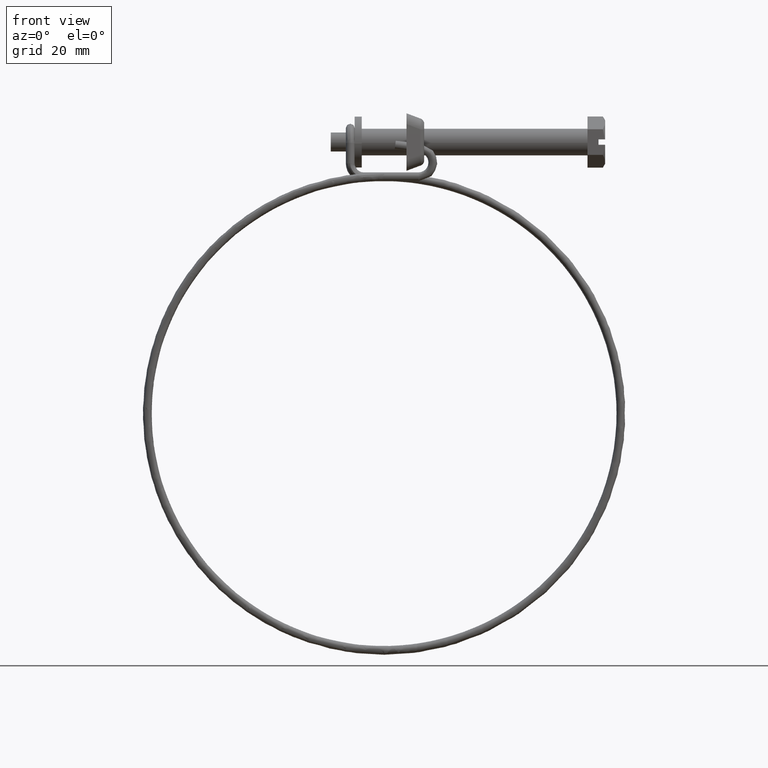
[diagram: clean part render]
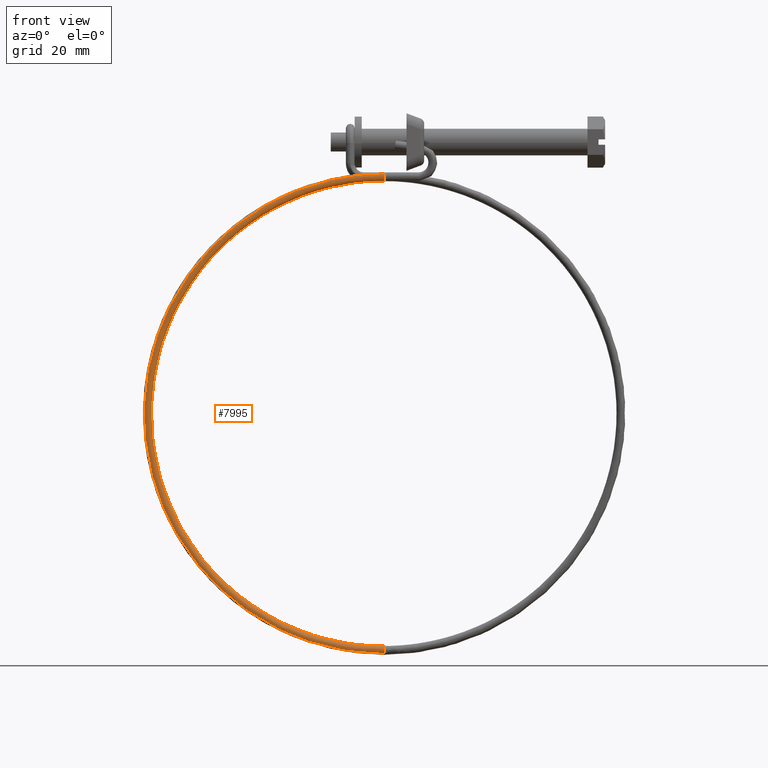
[diagram: same view with one face highlighted and labeled with its STEP entity id]
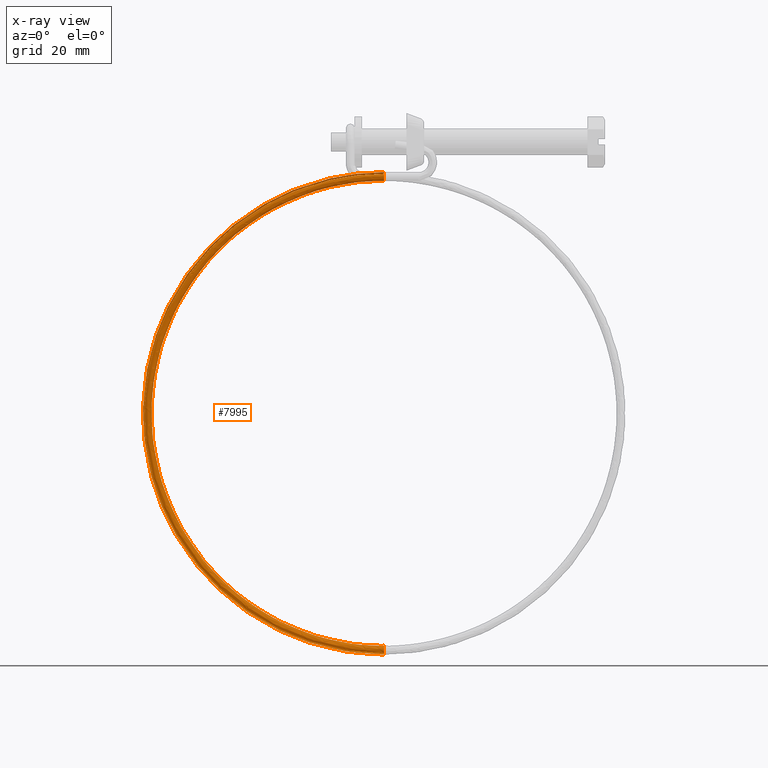
[diagram: x-ray of the same camera — body ghosted, the highlighted face saturated]
A machine part, front view. The second image highlights one B-rep face of the part: STEP entity #7995.
The next image is the same camera in x-ray: the body ghosted, the highlighted face saturated — about 0% of this face is hidden behind the body in this view.
In plain terms, the highlighted face is a freeform B-spline surface patch.
Its self-contained STEP definition (entity closure, byte-faithful):
#5912=CARTESIAN_POINT('',(-45.949999999998703,-5.993943839840402,-6.901770432408448));
#5913=VERTEX_POINT('',#5912);
#5919=CARTESIAN_POINT('',(-45.949999999998703,-6.347558821342070,-6.850706506990100));
#5920=VERTEX_POINT('',#5919);
#5921=CARTESIAN_POINT('',(-45.949999999998703,-5.993943839840402,-6.901770432408448));
#5922=CARTESIAN_POINT('',(-45.949999999998703,-6.107565939268501,-6.863957638790427));
#5923=CARTESIAN_POINT('',(-45.949999999998703,-6.227818193725820,-6.846057049209963));
#5924=CARTESIAN_POINT('',(-45.949999999998703,-6.347558821342070,-6.850706506990100));
#5925=B_SPLINE_CURVE_WITH_KNOTS('',3,(#5921,#5922,#5923,#5924),.UNSPECIFIED.,.F.,.U.,(4,4),(0.942811831421897,1.0),.UNSPECIFIED.);
#5926=EDGE_CURVE('',#5913,#5920,#5925,.T.);
#5928=CARTESIAN_POINT('',(-45.949999999998703,-7.064145653781002,-7.193325254520285));
#5929=VERTEX_POINT('',#5928);
#5939=CARTESIAN_POINT('',(-45.949999999998703,-6.272445141091740,-8.849295493009789));
#5940=VERTEX_POINT('',#5939);
#5941=CARTESIAN_POINT('',(-45.949999999998703,-7.064145653781002,-7.193325254520285));
#5942=CARTESIAN_POINT('',(-45.949999999998703,-7.228865528266508,-7.383012991203107));
#5943=CARTESIAN_POINT('',(-45.949999999998703,-7.318735519895909,-7.636408213984530));
#5944=CARTESIAN_POINT('',(-45.949999999998703,-7.299464116474320,-8.149172526626140));
#5945=CARTESIAN_POINT('',(-45.949999999998703,-7.181995243018780,-8.405128616700951));
#5946=CARTESIAN_POINT('',(-45.949999999998703,-6.798111151569420,-8.761202600783092));
#5947=CARTESIAN_POINT('',(-45.949999999998703,-6.534059827592780,-8.859127850762231));
#5948=CARTESIAN_POINT('',(-45.949999999998703,-6.272445141091740,-8.849295493009789));
#5949=B_SPLINE_CURVE_WITH_KNOTS('',3,(#5941,#5942,#5943,#5944,#5945,#5946,#5947,#5948),.UNSPECIFIED.,.F.,.U.,(4,2,2,4),(0.130000225952729,0.250000000000000,0.375000000000000,0.500000000000000),.UNSPECIFIED.);
#5950=EDGE_CURVE('',#5929,#5940,#5949,.T.);
#5952=CARTESIAN_POINT('',(-45.949999999998703,-5.310317494428539,-7.873518651706552));
#5953=VERTEX_POINT('',#5952);
#5954=CARTESIAN_POINT('',(-45.949999999998703,-6.272445141091740,-8.849295493009789));
#5955=CARTESIAN_POINT('',(-45.949999999998703,-6.010825040058333,-8.839463275377119));
#5956=CARTESIAN_POINT('',(-45.949999999998703,-5.754861471820470,-8.721994595444929));
#5957=CARTESIAN_POINT('',(-45.949999999998703,-5.412625271354212,-8.353044815053304));
#5958=CARTESIAN_POINT('',(-45.949999999998703,-5.316564215810785,-8.114711933716503));
#5959=CARTESIAN_POINT('',(-45.949999999998703,-5.310317494428539,-7.873518651706552));
#5960=B_SPLINE_CURVE_WITH_KNOTS('',3,(#5954,#5955,#5956,#5957,#5958,#5959),.UNSPECIFIED.,.F.,.U.,(4,2,4),(0.500000000000000,0.625000000000000,0.740274446267033),.UNSPECIFIED.);
#5961=EDGE_CURVE('',#5940,#5953,#5960,.T.);
#6032=CARTESIAN_POINT('',(-45.949999999998703,-5.310317494428539,-7.873518651706552));
#6033=CARTESIAN_POINT('',(-45.949999999998703,-5.309789317262141,-7.853163164235821));
#6034=CARTESIAN_POINT('',(-45.949999999998703,-5.309900395967639,-7.832787167828730));
#6035=CARTESIAN_POINT('',(-45.949999999998703,-5.320474989033110,-7.550726200669853));
#6036=CARTESIAN_POINT('',(-45.949999999998703,-5.437917225389181,-7.294663051554376));
#6037=CARTESIAN_POINT('',(-45.949999999998703,-5.733948809797538,-7.019889237232020));
#6038=CARTESIAN_POINT('',(-45.949999999998703,-5.859285452560762,-6.946831066752122));
#6039=CARTESIAN_POINT('',(-45.949999999998703,-5.993943839840402,-6.901770432408448));
#6040=B_SPLINE_CURVE_WITH_KNOTS('',3,(#6032,#6033,#6034,#6035,#6036,#6037,#6038,#6039),.UNSPECIFIED.,.F.,.U.,(4,2,2,4),(0.740274446267033,0.750000000000000,0.875000000000000,0.942811831421897),.UNSPECIFIED.);
#6041=EDGE_CURVE('',#5953,#5913,#6040,.T.);
#6647=CARTESIAN_POINT('',(-45.949999999984499,-3.306810287597761,-114.734551136563890));
#6648=VERTEX_POINT('',#6647);
#6664=CARTESIAN_POINT('',(-45.950000000001147,-4.300002000000002,-113.850000999999910));
#6665=VERTEX_POINT('',#6664);
#6666=CARTESIAN_POINT('',(-45.950000000001147,-4.300002000000002,-113.850000999999910));
#6667=CARTESIAN_POINT('',(-45.949999999998703,-4.038184983386362,-113.849998888258200));
#6668=CARTESIAN_POINT('',(-45.949999999995370,-3.777973727979099,-113.957769111570900));
#6669=CARTESIAN_POINT('',(-45.949999999989323,-3.434978456789548,-114.300715488888800));
#6670=CARTESIAN_POINT('',(-45.949999999986588,-3.333351637188295,-114.513111612347800));
#6671=CARTESIAN_POINT('',(-45.949999999984499,-3.306810287597761,-114.734551136563890));
#6672=B_SPLINE_CURVE_WITH_KNOTS('',3,(#6666,#6667,#6668,#6669,#6670,#6671),.UNSPECIFIED.,.F.,.U.,(4,2,4),(0.500000000000000,0.625000000000000,0.731573696068176),.UNSPECIFIED.);
#6673=EDGE_CURVE('',#6665,#6648,#6672,.T.);
#6675=CARTESIAN_POINT('',(-45.950000000001253,-5.028950952944387,-115.534536709492800));
#6676=VERTEX_POINT('',#6675);
#6677=CARTESIAN_POINT('',(-45.950000000001253,-5.028950952944387,-115.534536709492800));
#6678=CARTESIAN_POINT('',(-45.950000000001189,-5.200678688407399,-115.351169156825700));
#6679=CARTESIAN_POINT('',(-45.950000000001182,-5.300001999999999,-115.101327939052790));
#6680=CARTESIAN_POINT('',(-45.950000000001182,-5.300002000000001,-114.588201612200810));
#6681=CARTESIAN_POINT('',(-45.950000000001182,-5.192228903609815,-114.328014341236600));
#6682=CARTESIAN_POINT('',(-45.950000000001147,-4.821988658763284,-113.957774096390100));
#6683=CARTESIAN_POINT('',(-45.950000000001147,-4.561801387799152,-113.850000999999910));
#6684=CARTESIAN_POINT('',(-45.950000000001147,-4.300002000000002,-113.850000999999910));
#6685=B_SPLINE_CURVE_WITH_KNOTS('',3,(#6677,#6678,#6679,#6680,#6681,#6682,#6683,#6684),.UNSPECIFIED.,.F.,.U.,(4,2,2,4),(0.130000225952720,0.250000000000000,0.375000000000000,0.500000000000000),.UNSPECIFIED.);
#6686=EDGE_CURVE('',#6676,#6665,#6685,.T.);
#6688=CARTESIAN_POINT('',(-45.949999999969982,-4.300002000000003,-115.850000999999910));
#6689=VERTEX_POINT('',#6688);
#6770=CARTESIAN_POINT('',(-45.949999999984499,-3.306810287597761,-114.734551136563890));
#6771=CARTESIAN_POINT('',(-45.949999999984250,-3.302226016640720,-114.772837989461100));
#6772=CARTESIAN_POINT('',(-45.949999999983987,-3.299886312454083,-114.811395181170400));
#6773=CARTESIAN_POINT('',(-45.949999999981813,-3.299904328779361,-115.111788687840900));
#6774=CARTESIAN_POINT('',(-45.949999999979227,-3.407698784942967,-115.371978517475300));
#6775=CARTESIAN_POINT('',(-45.949999999974139,-3.777981005017367,-115.742223790501200));
#6776=CARTESIAN_POINT('',(-45.949999999971674,-4.038188632959521,-115.849999325437590));
#6777=CARTESIAN_POINT('',(-45.949999999969982,-4.300002000000003,-115.850000999999910));
#6778=B_SPLINE_CURVE_WITH_KNOTS('',3,(#6770,#6771,#6772,#6773,#6774,#6775,#6776,#6777),.UNSPECIFIED.,.F.,.U.,(4,2,2,4),(0.731573696068177,0.750000000000000,0.875000000000000,1.0),.UNSPECIFIED.);
#6779=EDGE_CURVE('',#6648,#6689,#6778,.T.);
#7655=CARTESIAN_POINT('',(-45.950000000001303,-5.028949982883884,-115.534537745304500));
#7656=CARTESIAN_POINT('',(-45.950000000001303,-5.200678314366810,-115.351170097699000));
#7657=CARTESIAN_POINT('',(-45.950000000001303,-5.300002000000000,-115.101328412287100));
#7658=CARTESIAN_POINT('',(-45.950000000001303,-5.300002000000000,-114.588201612200610));
#7659=CARTESIAN_POINT('',(-45.950000000001303,-5.192228903609820,-114.328014341236400));
#7660=CARTESIAN_POINT('',(-45.950000000001303,-4.821988658763289,-113.957774096390000));
#7661=CARTESIAN_POINT('',(-45.950000000001303,-4.561801387799160,-113.850000999999810));
#7662=CARTESIAN_POINT('',(-45.950000000001303,-4.038202612200860,-113.850000999999810));
#7663=CARTESIAN_POINT('',(-45.950000000001303,-3.778015341236725,-113.957774096390000));
#7664=CARTESIAN_POINT('',(-45.950000000001303,-3.407775096390195,-114.328014341236400));
#7665=CARTESIAN_POINT('',(-45.950000000001303,-3.300002000000000,-114.588201612200610));
#7666=CARTESIAN_POINT('',(-45.950000000001303,-3.300002000000000,-115.111800387798990));
#7667=CARTESIAN_POINT('',(-45.950000000001303,-3.407775096390195,-115.371987658763000));
#7668=CARTESIAN_POINT('',(-45.950000000001303,-3.778015341236725,-115.742227903609600));
#7669=CARTESIAN_POINT('',(-45.950000000001303,-4.038202612200860,-115.850000999999810));
#7670=CARTESIAN_POINT('',(-45.950000000001303,-4.300002000000009,-115.850000999999810));
#7671=CARTESIAN_POINT('',(-53.042240966284773,-5.028950612264859,-115.534537753769600));
#7672=CARTESIAN_POINT('',(-53.017811424214472,-5.200678941584686,-115.351170108145200));
#7673=CARTESIAN_POINT('',(-52.984856920279633,-5.300002624314367,-115.101328423852390));
#7674=CARTESIAN_POINT('',(-52.917676402819197,-5.300002618417060,-114.588201623766000));
#7675=CARTESIAN_POINT('',(-52.883876751304498,-5.192229519073840,-114.328014351587200));
#7676=CARTESIAN_POINT('',(-52.836314059045797,-4.821989270090901,-113.957774102464800));
#7677=CARTESIAN_POINT('',(-52.822843901420697,-4.561801997973510,-113.850001003110190));
#7678=CARTESIAN_POINT('',(-52.824131645463098,-4.038203222544770,-113.850000997083400));
#7679=CARTESIAN_POINT('',(-52.838881617335304,-3.778015952901585,-113.957774090460010));
#7680=CARTESIAN_POINT('',(-52.888265454648803,-3.407775712430250,-114.328014331077000));
#7681=CARTESIAN_POINT('',(-52.922595222666303,-3.300002619065210,-114.588201600777000));
#7682=CARTESIAN_POINT('',(-52.991146771131902,-3.300002625082855,-115.111800376375200));
#7683=CARTESIAN_POINT('',(-53.024946422646600,-3.407775724429085,-115.371987648603390));
#7684=CARTESIAN_POINT('',(-53.072509114905287,-3.778015973408970,-115.742227897679400));
#7685=CARTESIAN_POINT('',(-53.085979272566902,-4.038203245530920,-115.850000997083400));
#7686=CARTESIAN_POINT('',(-53.085335400545652,-4.300002633245301,-115.850001000096800));
#7687=CARTESIAN_POINT('',(-60.129318017264538,-5.055436413462759,-114.124563567166010));
#7688=CARTESIAN_POINT('',(-60.080476900823847,-5.227073508313236,-113.946052795026700));
#7689=CARTESIAN_POINT('',(-60.014592130808651,-5.326274119270700,-113.702762846098300));
#7690=CARTESIAN_POINT('',(-59.880280506386001,-5.326023221230360,-113.202992309702000));
#7691=CARTESIAN_POINT('',(-59.812706062635201,-5.218123893809370,-112.949524800373000));
#7692=CARTESIAN_POINT('',(-59.717615660054904,-4.847706017313159,-112.588740568734390));
#7693=CARTESIAN_POINT('',(-59.690685251995113,-4.587468439561389,-112.483645495492400));
#7694=CARTESIAN_POINT('',(-59.693259792905401,-4.063874473278546,-112.483389477062600));
#7695=CARTESIAN_POINT('',(-59.722748888393603,-3.803742288808405,-112.588230108451000));
#7696=CARTESIAN_POINT('',(-59.821480241692598,-3.433686477012765,-112.948652275369200));
#7697=CARTESIAN_POINT('',(-59.890114528365700,-3.326041591474240,-113.202014391444000));
#7698=CARTESIAN_POINT('',(-60.027167206299403,-3.326297609879715,-113.711984326542190));
#7699=CARTESIAN_POINT('',(-60.094741650050103,-3.434196937303735,-113.965451835871210));
#7700=CARTESIAN_POINT('',(-60.189832052630493,-3.804614813799945,-114.326236067412590));
#7701=CARTESIAN_POINT('',(-60.216762460641597,-4.064852391548675,-114.431331140751600));
#7702=CARTESIAN_POINT('',(-60.215475190186503,-4.326649374690102,-114.431459149966500));
#7703=CARTESIAN_POINT('',(-73.231725198274418,-5.157387925122736,-108.697293990110300));
#7704=CARTESIAN_POINT('',(-73.137755786843726,-5.328673870920003,-108.537476227521690));
#7705=CARTESIAN_POINT('',(-73.010994698672036,-5.427400795437054,-108.319402422765710));
#7706=CARTESIAN_POINT('',(-72.752581599090192,-5.426184247899510,-107.871037109388200));
#7707=CARTESIAN_POINT('',(-72.622569609878198,-5.317799085917620,-107.643432434671990));
#7708=CARTESIAN_POINT('',(-72.439617420928997,-4.946697545588190,-107.319042248371600));
#7709=CARTESIAN_POINT('',(-72.387803810188103,-4.686266348441080,-107.224254277166000));
#7710=CARTESIAN_POINT('',(-72.392757179709506,-4.162690892132940,-107.223012902148990));
#7711=CARTESIAN_POINT('',(-72.449493657840591,-3.902770723039780,-107.316567142459600));
#7712=CARTESIAN_POINT('',(-72.639450969100096,-3.533424752130490,-107.639201759359810));
#7713=CARTESIAN_POINT('',(-72.771502076863200,-3.426273321014610,-107.866295405994610));
#7714=CARTESIAN_POINT('',(-73.035188913219898,-3.427514696055965,-108.323811031890000));
#7715=CARTESIAN_POINT('',(-73.165200902431806,-3.535899858034815,-108.551415706606210));
#7716=CARTESIAN_POINT('',(-73.348153091381093,-3.907001398364251,-108.875805893004000));
#7717=CARTESIAN_POINT('',(-73.399966702170602,-4.167432595514390,-108.970593864112400));
#7718=CARTESIAN_POINT('',(-73.397490017409865,-4.429220323668459,-108.971214551620900));
#7719=CARTESIAN_POINT('',(-79.240741991661636,-5.232812868264366,-104.682135287808410));
#7720=CARTESIAN_POINT('',(-79.126077720003408,-5.403839043170935,-104.536146124959900));
#7721=CARTESIAN_POINT('',(-78.971400068747982,-5.502215546843177,-104.336726564501600));
#7722=CARTESIAN_POINT('',(-78.656076716109197,-5.500284637044861,-103.926389491118000));
#7723=CARTESIAN_POINT('',(-78.497432218644093,-5.391540067360280,-103.717917465354800));
#7724=CARTESIAN_POINT('',(-78.274188514282599,-5.019932770400630,-103.420450642327590));
#7725=CARTESIAN_POINT('',(-78.210964004920598,-4.759358338688990,-103.333287595779200));
#7726=CARTESIAN_POINT('',(-78.217008253759801,-4.235796575569490,-103.331317279719200));
#7727=CARTESIAN_POINT('',(-78.286239792479805,-3.976033249916211,-103.416522143009400));
#7728=CARTESIAN_POINT('',(-78.518031355491900,-3.607212400736325,-103.711202518229400));
#7729=CARTESIAN_POINT('',(-78.679164045994398,-3.500426014300820,-103.918863437934410));
#7730=CARTESIAN_POINT('',(-79.000922569095209,-3.502396330424590,-104.337574737305200));
#7731=CARTESIAN_POINT('',(-79.159567066609000,-3.611140900103095,-104.546046762971200));
#7732=CARTESIAN_POINT('',(-79.382810770873192,-3.982748197065780,-104.843513586144200));
#7733=CARTESIAN_POINT('',(-79.446035280283908,-4.243322628777425,-104.930676632643990));
#7734=CARTESIAN_POINT('',(-79.443013155864250,-4.505103510337173,-104.931661790674000));
#7735=CARTESIAN_POINT('',(-89.268742537787602,-5.421191424127962,-94.654023016476756));
#7736=CARTESIAN_POINT('',(-89.119545455792846,-5.591568891357353,-94.542567048716961));
#7737=CARTESIAN_POINT('',(-88.918284384081119,-5.689070313550349,-94.389731427750860));
#7738=CARTESIAN_POINT('',(-88.507996825302101,-5.685355476842350,-94.074359618285811));
#7739=CARTESIAN_POINT('',(-88.301574233932200,-5.575713383449140,-93.913666218868897));
#7740=CARTESIAN_POINT('',(-88.011097446760502,-5.202843095820020,-93.683433227744104));
#7741=CARTESIAN_POINT('',(-87.928831958273705,-4.941910974446820,-93.615311372500102));
#7742=CARTESIAN_POINT('',(-87.936696520404496,-4.418383406380895,-93.611520722737311));
#7743=CARTESIAN_POINT('',(-88.026778142372194,-4.159011754872935,-93.675875270480589));
#7744=CARTESIAN_POINT('',(-88.328377100003493,-3.791502255462990,-93.900747473413489));
#7745=CARTESIAN_POINT('',(-88.538037239858795,-3.685627469579665,-94.059880402965106));
#7746=CARTESIAN_POINT('',(-88.956698014123106,-3.689418119278665,-94.381688371807002));
#7747=CARTESIAN_POINT('',(-89.163120605444405,-3.799060212677950,-94.542381771321104));
#7748=CARTESIAN_POINT('',(-89.453597392713306,-4.171930500304030,-94.772614762300094));
#7749=CARTESIAN_POINT('',(-89.535862881151417,-4.432862621677231,-94.840736617592711));
#7750=CARTESIAN_POINT('',(-89.531930600086042,-4.694626405710195,-94.842631942474114));
#7751=CARTESIAN_POINT('',(-93.283783373338949,-5.534070923281065,-88.645014796192214));
#7752=CARTESIAN_POINT('',(-93.120761785353906,-5.704059711454115,-88.554249703690786));
#7753=CARTESIAN_POINT('',(-92.900851991666869,-5.801036820694696,-88.429325270275569));
#7754=CARTESIAN_POINT('',(-92.452547450713794,-5.796253128090180,-88.170852755313291));
#7755=CARTESIAN_POINT('',(-92.226997874337499,-5.686073275264810,-88.038786350630701));
#7756=CARTESIAN_POINT('',(-91.909605694180200,-5.312446255391520,-87.848837116380494));
#7757=CARTESIAN_POINT('',(-91.819717538337301,-5.051299821029129,-87.792123962521799));
#7758=CARTESIAN_POINT('',(-91.828310825746783,-4.527792741234620,-87.787242643595292));
#7759=CARTESIAN_POINT('',(-91.926739353031905,-4.268655764826940,-87.839104536827691));
#7760=CARTESIAN_POINT('',(-92.256284276813901,-3.901931972459125,-88.022150543502590));
#7761=CARTESIAN_POINT('',(-92.485371390820504,-3.796603380266120,-88.152207490276112));
#7762=CARTESIAN_POINT('',(-92.942825004037900,-3.801484699247284,-88.415954954474600));
#7763=CARTESIAN_POINT('',(-93.168374580462796,-3.911664552075685,-88.548021359157204));
#7764=CARTESIAN_POINT('',(-93.485766760668710,-4.285291571948981,-88.737970593407496));
#7765=CARTESIAN_POINT('',(-93.575654916462994,-4.546438006311361,-88.794683747314807));
#7766=CARTESIAN_POINT('',(-93.571358272758204,-4.808191546208620,-88.797124406802354));
#7767=CARTESIAN_POINT('',(-98.710841336742490,-5.780196472264437,-75.542808832643487));
#7768=CARTESIAN_POINT('',(-98.529134375195270,-5.949337849584884,-75.497154666684409));
#7769=CARTESIAN_POINT('',(-98.284018737942461,-6.045171834475336,-75.433083121972118));
#7770=CARTESIAN_POINT('',(-97.784329972733403,-6.038057787108830,-75.298664319745001));
#7771=CARTESIAN_POINT('',(-97.532928126425801,-5.926705493488320,-75.229011430357801));
#7772=CARTESIAN_POINT('',(-97.179156767627902,-5.551428621084780,-75.126890167395700));
#7773=CARTESIAN_POINT('',(-97.078965719997015,-5.289814934504660,-75.095050639374605));
#7774=CARTESIAN_POINT('',(-97.088543961555303,-4.766352523918121,-75.087791407310306));
#7775=CARTESIAN_POINT('',(-97.198254269476493,-4.507727193866970,-75.112416404448908));
#7776=CARTESIAN_POINT('',(-97.565571307365204,-4.142716425823886,-75.204271563120400));
#7777=CARTESIAN_POINT('',(-97.820916160437505,-4.038578663079770,-75.270936095933095));
#7778=CARTESIAN_POINT('',(-98.330802655548808,-4.045837895089441,-75.408098139070589));
#7779=CARTESIAN_POINT('',(-98.582204501807809,-4.157190188706916,-75.477751028457803));
#7780=CARTESIAN_POINT('',(-98.935975860557107,-4.532467061110451,-75.579872291419889));
#7781=CARTESIAN_POINT('',(-99.036166908236609,-4.794080747690580,-75.611711819392397));
#7782=CARTESIAN_POINT('',(-99.031377787457458,-5.055811952983845,-75.615341435400239));
#7783=CARTESIAN_POINT('',(-100.120725091942300,-5.913345721896577,-68.454764134262547));
#7784=CARTESIAN_POINT('',(-99.934164433305511,-6.082028699333134,-68.433512350139949));
#7785=CARTESIAN_POINT('',(-99.682501347098437,-6.177244320585625,-68.402358671217115));
#7786=CARTESIAN_POINT('',(-99.169465058631005,-6.168869687117900,-68.335045696573815));
#7787=CARTESIAN_POINT('',(-98.911347848221894,-6.056883171375031,-68.299154880996298));
#7788=CARTESIAN_POINT('',(-98.548126664335797,-5.680713824930640,-68.244543431041791));
#7789=CARTESIAN_POINT('',(-98.445259346147793,-5.418847382124750,-68.226159084857585));
#7790=CARTESIAN_POINT('',(-98.455093438558507,-4.895409134976551,-68.217613540508893));
#7791=CARTESIAN_POINT('',(-98.567734292461211,-4.637060575785520,-68.227504964391201));
#7792=CARTESIAN_POINT('',(-98.944862983207997,-4.272976454053565,-68.270031189618209));
#7793=CARTESIAN_POINT('',(-99.207028524662491,-4.169482860627670,-68.302404121574710));
#7794=CARTESIAN_POINT('',(-99.730534941466004,-4.178028404982496,-68.371090830394408));
#7795=CARTESIAN_POINT('',(-99.988652151875101,-4.290014920728400,-68.406981645971911));
#7796=CARTESIAN_POINT('',(-100.351873335761200,-4.666184267178860,-68.461593095926403));
#7797=CARTESIAN_POINT('',(-100.454740653949200,-4.928050709978680,-68.479977442110609));
#7798=CARTESIAN_POINT('',(-100.449823607743800,-5.189769833551259,-68.484250214284941));
#7799=CARTESIAN_POINT('',(-100.120725091845100,-6.179748984295947,-54.273097794045889));
#7800=CARTESIAN_POINT('',(-99.934164433208338,-6.347514804861727,-54.300669784501849));
#7801=CARTESIAN_POINT('',(-99.682501347001235,-6.441493217085509,-54.335377482151173));
#7802=CARTESIAN_POINT('',(-99.169465058533802,-6.430596429358450,-54.402328442250102));
#7803=CARTESIAN_POINT('',(-98.911347848124691,-6.317340975255590,-54.433988076938313));
#7804=CARTESIAN_POINT('',(-98.548126664238595,-5.939385985404091,-54.474433266128500));
#7805=CARTESIAN_POINT('',(-98.445259346050605,-5.677013833269220,-54.482969765901601));
#7806=CARTESIAN_POINT('',(-98.455093438461304,-5.153623931817030,-54.471850594745398));
#7807=CARTESIAN_POINT('',(-98.567734292364008,-4.895829129969130,-54.452263393797693));
#7808=CARTESIAN_POINT('',(-98.944862983110795,-4.533599022772401,-54.396093321968003));
#7809=CARTESIAN_POINT('',(-99.207028524565303,-4.431394269828975,-54.359856336998902));
#7810=CARTESIAN_POINT('',(-99.730534941368802,-4.442513440979035,-54.291539030775503));
#7811=CARTESIAN_POINT('',(-99.988652151777913,-4.555768895078860,-54.259879396087300));
#7812=CARTESIAN_POINT('',(-100.351873335664000,-4.933723884924280,-54.219434206897098));
#7813=CARTESIAN_POINT('',(-100.454740653852000,-5.196096037065230,-54.210897707124012));
#7814=CARTESIAN_POINT('',(-100.449823607646590,-5.457790987792840,-54.216457292702110));
#7815=CARTESIAN_POINT('',(-98.710841336741510,-6.312898233928732,-47.185053095784497));
#7816=CARTESIAN_POINT('',(-98.529134375190665,-6.480205654615325,-47.237027468051920));
#7817=CARTESIAN_POINT('',(-98.284018737893078,-6.573565703192796,-47.304653031446733));
#7818=CARTESIAN_POINT('',(-97.784329972683992,-6.561408329367500,-47.438709819177099));
#7819=CARTESIAN_POINT('',(-97.532928126425006,-6.447518653145330,-47.504131527675000));
#7820=CARTESIAN_POINT('',(-97.179156767578505,-6.068671189246889,-47.592086529872802));
#7821=CARTESIAN_POINT('',(-97.078965719996205,-5.806046280889291,-47.614078211482799));
#7822=CARTESIAN_POINT('',(-97.088543961554606,-5.282680542878480,-47.601672727993687));
#7823=CARTESIAN_POINT('',(-97.198254269427110,-5.025162511884620,-47.567351953838298));
#7824=CARTESIAN_POINT('',(-97.565571307364408,-4.663859050999021,-47.461852948612503));
#7825=CARTESIAN_POINT('',(-97.820916160388194,-4.562298467376861,-47.391324362738800));
#7826=CARTESIAN_POINT('',(-98.330802655499497,-4.574703950872070,-47.254531722197498));
#7827=CARTESIAN_POINT('',(-98.582204501806999,-4.688593627097280,-47.189110013699697));
#7828=CARTESIAN_POINT('',(-98.935975860556297,-5.067441090992671,-47.101155011501902));
#7829=CARTESIAN_POINT('',(-99.036166908187298,-5.330065999353320,-47.079163329940499));
#7830=CARTESIAN_POINT('',(-99.031377787408104,-5.591748868358720,-47.085366071685051));
#7831=CARTESIAN_POINT('',(-93.283783373338451,-6.559023782910781,-34.082847131998861));
#7832=CARTESIAN_POINT('',(-93.120761785356905,-6.725483792735359,-34.179932430858663));
#7833=CARTESIAN_POINT('',(-92.900851991714660,-6.817700716979395,-34.308410883044147));
#7834=CARTESIAN_POINT('',(-92.452547450761600,-6.803212988386150,-34.566521383414447));
#7835=CARTESIAN_POINT('',(-92.226997874336703,-6.688150871362760,-34.694356607207752));
#7836=CARTESIAN_POINT('',(-91.909605694228006,-6.307653554946231,-34.870139580693603));
#7837=CARTESIAN_POINT('',(-91.819717538336491,-6.044561394364809,-34.917004888141200));
#7838=CARTESIAN_POINT('',(-91.828310825746087,-5.521240325555910,-34.902221491611400));
#7839=CARTESIAN_POINT('',(-91.926739353079697,-5.264233940930730,-34.840663821265103));
#7840=CARTESIAN_POINT('',(-92.256284276813091,-4.904643504369861,-34.643973967938749));
#7841=CARTESIAN_POINT('',(-92.485371390868295,-4.804273750190510,-34.510052968201400));
#7842=CARTESIAN_POINT('',(-92.942825004085705,-4.819057146714220,-34.246674906599047));
#7843=CARTESIAN_POINT('',(-93.168374580462000,-4.934119263734580,-34.118839682805749));
#7844=CARTESIAN_POINT('',(-93.485766760667900,-5.314616580154140,-33.943056709319897));
#7845=CARTESIAN_POINT('',(-93.575654916510800,-5.577708740732531,-33.896191401823700));
#7846=CARTESIAN_POINT('',(-93.571358272806052,-5.839369275136980,-33.903583100088582));
#7847=CARTESIAN_POINT('',(-89.268742537839657,-6.671903282063169,-28.073838911838340));
#7848=CARTESIAN_POINT('',(-89.119545455884378,-6.837974612837011,-28.191615085974359));
#7849=CARTESIAN_POINT('',(-88.918284384128796,-6.929667224114692,-28.348004725666041));
#7850=CARTESIAN_POINT('',(-88.507996825397413,-6.914110639627910,-28.663014520539150));
#7851=CARTESIAN_POINT('',(-88.301574234027399,-6.798510763175390,-28.819476739066701));
#7852=CARTESIAN_POINT('',(-88.011097446709996,-6.417256714514690,-29.035543469329902));
#7853=CARTESIAN_POINT('',(-87.928831958369003,-6.153950240941040,-29.093817478308651));
#7854=CARTESIAN_POINT('',(-87.936696520451193,-5.630649660409629,-29.077943412469349));
#7855=CARTESIAN_POINT('',(-88.026778142370290,-5.373877950878660,-29.003893087563551));
#7856=CARTESIAN_POINT('',(-88.328377100098791,-5.015073221359920,-28.765377038173600));
#7857=CARTESIAN_POINT('',(-88.538037239954093,-4.915249660876970,-28.602380055560850));
#7858=CARTESIAN_POINT('',(-88.956698014169802,-4.931123726679810,-28.280941489363801));
#7859=CARTESIAN_POINT('',(-89.163120605539703,-5.046723603126250,-28.124479270787649));
#7860=CARTESIAN_POINT('',(-89.453597392760003,-5.427977651796059,-27.908412540427250));
#7861=CARTESIAN_POINT('',(-89.535862881198113,-5.691284125369710,-27.850138531545650));
#7862=CARTESIAN_POINT('',(-89.531930600108410,-5.952934415635415,-27.858075564465299));
#7863=CARTESIAN_POINT('',(-79.240741991605759,-6.860281837929512,-18.045726640495431));
#7864=CARTESIAN_POINT('',(-79.126077719908082,-7.025704461024382,-18.198036009634379));
#7865=CARTESIAN_POINT('',(-78.971400068696511,-7.116521990834007,-18.401009588820159));
#7866=CARTESIAN_POINT('',(-78.656076716010091,-7.099181479437550,-18.810984647706849));
#7867=CARTESIAN_POINT('',(-78.497432218544986,-6.982684079276400,-19.015225492580800));
#7868=CARTESIAN_POINT('',(-78.274188514329296,-6.600167039934080,-19.298526054940801));
#7869=CARTESIAN_POINT('',(-78.210964004821392,-6.336502876711030,-19.375841254932350));
#7870=CARTESIAN_POINT('',(-78.217008253709295,-5.813236491227110,-19.358146855584650));
#7871=CARTESIAN_POINT('',(-78.286239792477900,-5.556856455841460,-19.263246215326252));
#7872=CARTESIAN_POINT('',(-78.518031355392807,-5.199363076092660,-18.954921993357551));
#7873=CARTESIAN_POINT('',(-78.679164045895291,-5.100451116155811,-18.743397020688750));
#7874=CARTESIAN_POINT('',(-79.000922569044704,-5.118145515539960,-18.325055123865599));
#7875=CARTESIAN_POINT('',(-79.159567066509794,-5.234642915707180,-18.120814279040300));
#7876=CARTESIAN_POINT('',(-79.382810770822701,-5.617159955040379,-17.837513716777451));
#7877=CARTESIAN_POINT('',(-79.446035280233303,-5.880824118263440,-17.760198516688700));
#7878=CARTESIAN_POINT('',(-79.443013155838003,-6.142457311005396,-17.769045716362552));
#7879=CARTESIAN_POINT('',(-73.231725198105437,-6.935706781074147,-14.030567938032680));
#7880=CARTESIAN_POINT('',(-73.137755786699799,-7.100869633278098,-14.196705906972650));
#7881=CARTESIAN_POINT('',(-73.010994698571963,-7.191336742240170,-14.418333730412130));
#7882=CARTESIAN_POINT('',(-72.752581598942484,-7.173281868585920,-14.866337029340560));
#7883=CARTESIAN_POINT('',(-72.622569609730505,-7.056425060725109,-15.089710523167451));
#7884=CARTESIAN_POINT('',(-72.439617420781204,-6.673402264755620,-15.399934448703601));
#7885=CARTESIAN_POINT('',(-72.387803809991794,-6.409594866952840,-15.484874573400999));
#7886=CARTESIAN_POINT('',(-72.392757179513197,-5.886342174669711,-15.466451233010350));
#7887=CARTESIAN_POINT('',(-72.449493657741399,-5.630118982717870,-15.363201215634200));
#7888=CARTESIAN_POINT('',(-72.639450969001004,-5.273150724703029,-15.026922752131251));
#7889=CARTESIAN_POINT('',(-72.771502076715493,-5.174603809448070,-14.795965052435241));
#7890=CARTESIAN_POINT('',(-73.035188913072204,-5.193027149911600,-14.338818829038861));
#7891=CARTESIAN_POINT('',(-73.165200902332714,-5.309883957778470,-14.115445335309200));
#7892=CARTESIAN_POINT('',(-73.348153091184798,-5.692906753747970,-13.805221409724460));
#7893=CARTESIAN_POINT('',(-73.399966701974193,-5.956714151538600,-13.720281285027060));
#7894=CARTESIAN_POINT('',(-73.397490017237800,-6.218340497683200,-13.729492955222380));
#7895=CARTESIAN_POINT('',(-60.129318017429611,-7.037658292725335,-8.603298361312060));
#7896=CARTESIAN_POINT('',(-60.080476900963880,-7.202469995878306,-8.788129339766778));
#7897=CARTESIAN_POINT('',(-60.014592130904930,-7.292463418394262,-9.034973307464481));
#7898=CARTESIAN_POINT('',(-59.880280506529900,-7.273442895236840,-9.534381829221310));
#7899=CARTESIAN_POINT('',(-59.812706062779100,-7.156100252809060,-9.783618157660939));
#7900=CARTESIAN_POINT('',(-59.717615660198703,-6.772393793012420,-10.130236128535120));
#7901=CARTESIAN_POINT('',(-59.690685252187613,-6.508392775832530,-10.225483355463140));
#7902=CARTESIAN_POINT('',(-59.693259793097901,-5.985158593505880,-10.206074658290840));
#7903=CARTESIAN_POINT('',(-59.722748888488802,-5.729147416943159,-10.091538249837200));
#7904=CARTESIAN_POINT('',(-59.821480241787803,-5.372888999805570,-9.717472236316130));
#7905=CARTESIAN_POINT('',(-59.890114528509500,-5.274835538976290,-9.460246067277561));
#7906=CARTESIAN_POINT('',(-60.027167206443202,-5.294244236075699,-8.950645534872631));
#7907=CARTESIAN_POINT('',(-60.094741650145401,-5.411586878497400,-8.701409206335800));
#7908=CARTESIAN_POINT('',(-60.189832052823000,-5.795293338294051,-8.354791235510231));
#7909=CARTESIAN_POINT('',(-60.216762460834097,-6.059294355486090,-8.259544008582200));
#7910=CARTESIAN_POINT('',(-60.215475190354653,-6.320911446646375,-8.269248357168351));
#7911=CARTESIAN_POINT('',(-53.042240929872072,-7.064411087560499,-7.193357530854852));
#7912=CARTESIAN_POINT('',(-53.017811387970667,-7.229131100243463,-7.383045212860420));
#7913=CARTESIAN_POINT('',(-52.984856884272283,-7.319000832402490,-7.636440685480004));
#7914=CARTESIAN_POINT('',(-52.917676367192207,-7.299728147134011,-8.149205000227200));
#7915=CARTESIAN_POINT('',(-52.883876715887602,-7.182258633002400,-8.405160853931530));
#7916=CARTESIAN_POINT('',(-52.836314023926299,-6.798373634646050,-8.761234506233469));
#7917=CARTESIAN_POINT('',(-52.822843866350603,-6.534322052689990,-8.859159662319829));
#7918=CARTESIAN_POINT('',(-52.824131610390587,-6.011092704370380,-8.839494955793329));
#7919=CARTESIAN_POINT('',(-52.838881582247602,-5.755136896715960,-8.722026185154689));
#7920=CARTESIAN_POINT('',(-52.888265419260307,-5.399063853783581,-8.338142438246621));
#7921=CARTESIAN_POINT('',(-52.922595187030304,-5.301139254095290,-8.074091354402150));
#7922=CARTESIAN_POINT('',(-52.991146735071098,-5.320805258551291,-7.550862461915460));
#7923=CARTESIAN_POINT('',(-53.024946386411202,-5.438274762867670,-7.294906609372339));
#7924=CARTESIAN_POINT('',(-53.072509078297102,-5.822159736895360,-6.938832960160020));
#7925=CARTESIAN_POINT('',(-53.085979235872102,-6.086211309740930,-6.840907805098360));
#7926=CARTESIAN_POINT('',(-53.085335363870414,-6.347825984354736,-6.850740158305275));
#7927=CARTESIAN_POINT('',(-45.949999999998703,-7.064144723306613,-7.193324183006714));
#7928=CARTESIAN_POINT('',(-45.949999999998703,-7.228865189826021,-7.383012036945601));
#7929=CARTESIAN_POINT('',(-45.949999999998703,-7.318735537669093,-7.636407741084111));
#7930=CARTESIAN_POINT('',(-45.949999999998703,-7.299464116474320,-8.149172526626140));
#7931=CARTESIAN_POINT('',(-45.949999999998703,-7.181995243018780,-8.405128616700951));
#7932=CARTESIAN_POINT('',(-45.949999999998703,-6.798111151569420,-8.761202600783092));
#7933=CARTESIAN_POINT('',(-45.949999999998703,-6.534059827592780,-8.859127850762231));
#7934=CARTESIAN_POINT('',(-45.949999999998703,-6.010830454590701,-8.839463135257349));
#7935=CARTESIAN_POINT('',(-45.949999999998703,-5.754874364515900,-8.721994261801799));
#7936=CARTESIAN_POINT('',(-45.949999999998703,-5.398800380433750,-8.338110170352460));
#7937=CARTESIAN_POINT('',(-45.949999999998703,-5.300875130454620,-8.074058846375809));
#7938=CARTESIAN_POINT('',(-45.949999999998703,-5.320539845959490,-7.550829473373740));
#7939=CARTESIAN_POINT('',(-45.949999999998703,-5.438008719415031,-7.294873383298940));
#7940=CARTESIAN_POINT('',(-45.949999999998703,-5.821892810864390,-6.938799399216780));
#7941=CARTESIAN_POINT('',(-45.949999999998703,-6.085944134841030,-6.840874149237660));
#7942=CARTESIAN_POINT('',(-45.949999999998703,-6.347558821342070,-6.850706506990100));
#7943=B_SPLINE_SURFACE_WITH_KNOTS('',3,3,((#7655,#7671,#7687,#7703,#7719,#7735,#7751,#7767,#7783,#7799,#7815,#7831,#7847,#7863,#7879,#7895,#7911,#7927),(#7656,#7672,#7688,#7704,#7720,#7736,#7752,#7768,#7784,#7800,#7816,#7832,#7848,#7864,#7880,#7896,#7912,#7928),(#7657,#7673,#7689,#7705,#7721,#7737,#7753,#7769,#7785,#7801,#7817,#7833,#7849,#7865,#7881,#7897,#7913,#7929),(#7658,#7674,#7690,#7706,#7722,#7738,#7754,#7770,#7786,#7802,#7818,#7834,#7850,#7866,#7882,#7898,#7914,#7930),(#7659,#7675,#7691,#7707,#7723,#7739,#7755,#7771,#7787,#7803,#7819,#7835,#7851,#7867,#7883,#7899,#7915,#7931),(#7660,#7676,#7692,#7708,#7724,#7740,#7756,#7772,#7788,#7804,#7820,#7836,#7852,#7868,#7884,#7900,#7916,#7932),(#7661,#7677,#7693,#7709,#7725,#7741,#7757,#7773,#7789,#7805,#7821,#7837,#7853,#7869,#7885,#7901,#7917,#7933),(#7662,#7678,#7694,#7710,#7726,#7742,#7758,#7774,#7790,#7806,#7822,#7838,#7854,#7870,#7886,#7902,#7918,#7934),(#7663,#7679,#7695,#7711,#7727,#7743,#7759,#7775,#7791,#7807,#7823,#7839,#7855,#7871,#7887,#7903,#7919,#7935),(#7664,#7680,#7696,#7712,#7728,#7744,#7760,#7776,#7792,#7808,#7824,#7840,#7856,#7872,#7888,#7904,#7920,#7936),(#7665,#7681,#7697,#7713,#7729,#7745,#7761,#7777,#7793,#7809,#7825,#7841,#7857,#7873,#7889,#7905,#7921,#7937),(#7666,#7682,#7698,#7714,#7730,#7746,#7762,#7778,#7794,#7810,#7826,#7842,#7858,#7874,#7890,#7906,#7922,#7938),(#7667,#7683,#7699,#7715,#7731,#7747,#7763,#7779,#7795,#7811,#7827,#7843,#7859,#7875,#7891,#7907,#7923,#7939),(#7668,#7684,#7700,#7716,#7732,#7748,#7764,#7780,#7796,#7812,#7828,#7844,#7860,#7876,#7892,#7908,#7924,#7940),(#7669,#7685,#7701,#7717,#7733,#7749,#7765,#7781,#7797,#7813,#7829,#7845,#7861,#7877,#7893,#7909,#7925,#7941),(#7670,#7686,#7702,#7718,#7734,#7750,#7766,#7782,#7798,#7814,#7830,#7846,#7862,#7878,#7894,#7910,#7926,#7942)),.UNSPECIFIED.,.F.,.F.,.U.,(4,2,2,2,2,2,2,4),(4,2,2,2,2,2,2,2,4),(0.0,0.753982236861557,1.539380400259013,2.324778563656468,3.110176727053924,3.895574890451380,4.680973053848835,5.466371217246291),(0.0,21.406006201633151,42.812012403266309,64.218018604899783,85.624024806532930,107.030031008166110,128.436037209799710,149.842043411432800,171.248049613065890),.UNSPECIFIED.);
#7944=ORIENTED_EDGE('',*,*,#5950,.F.);
#7945=CARTESIAN_POINT('',(-45.950000000001253,-5.028950952944387,-115.534536709492800));
#7946=CARTESIAN_POINT('',(-53.042240966284723,-5.028951582325362,-115.534536717957810));
#7947=CARTESIAN_POINT('',(-60.129318017264502,-5.055437383008081,-114.124562558779500));
#7948=CARTESIAN_POINT('',(-73.231725198274376,-5.157388892685021,-108.697293087288600));
#7949=CARTESIAN_POINT('',(-79.240741991661594,-5.232813834359577,-104.682134463084790));
#7950=CARTESIAN_POINT('',(-89.268742537787546,-5.421192386559064,-94.654022386808109));
#7951=CARTESIAN_POINT('',(-93.283783373338906,-5.534071883516574,-88.645014283403711));
#7952=CARTESIAN_POINT('',(-98.710841336742448,-5.780197427712612,-75.542808574703614));
#7953=CARTESIAN_POINT('',(-100.120725091942210,-5.913346674754897,-68.454764014190957));
#7954=CARTESIAN_POINT('',(-100.120725091845000,-6.179749931972519,-54.273097949819302));
#7955=CARTESIAN_POINT('',(-98.710841336741495,-6.312899179015447,-47.185053389426201));
#7956=CARTESIAN_POINT('',(-93.283783373338437,-6.559024723210163,-34.082847680489181));
#7957=CARTESIAN_POINT('',(-89.268742537839643,-6.671904220166958,-28.073839577208791));
#7958=CARTESIAN_POINT('',(-79.240741991605773,-6.860282772369192,-18.045727500920890));
#7959=CARTESIAN_POINT('',(-73.231725198105437,-6.935707714046754,-14.030568876556259));
#7960=CARTESIAN_POINT('',(-60.129318017429611,-7.037659223714906,-8.603299405400477));
#7961=CARTESIAN_POINT('',(-53.042240929872072,-7.064412018034897,-7.193358602367872));
#7962=CARTESIAN_POINT('',(-45.949999999998703,-7.064145653781002,-7.193325254520285));
#7963=B_SPLINE_CURVE_WITH_KNOTS('',3,(#7945,#7946,#7947,#7948,#7949,#7950,#7951,#7952,#7953,#7954,#7955,#7956,#7957,#7958,#7959,#7960,#7961,#7962),.UNSPECIFIED.,.F.,.U.,(4,2,2,2,2,2,2,2,4),(0.467599831403225,0.526052021395740,0.584504211388255,0.642956401380771,0.701408591373286,0.759860781365801,0.818312971358317,0.876765161350832,0.935217351343347),.UNSPECIFIED.);
#7964=EDGE_CURVE('',#6676,#5929,#7963,.T.);
#7965=ORIENTED_EDGE('',*,*,#7964,.F.);
#7966=ORIENTED_EDGE('',*,*,#6686,.T.);
#7967=ORIENTED_EDGE('',*,*,#6673,.T.);
#7968=ORIENTED_EDGE('',*,*,#6779,.T.);
#7969=CARTESIAN_POINT('',(-45.949999999969982,-4.300002000000003,-115.850000999999910));
#7970=CARTESIAN_POINT('',(-53.085335400545652,-4.300002633245301,-115.850001000096800));
#7971=CARTESIAN_POINT('',(-60.215475190186503,-4.326649374690102,-114.431459149966500));
#7972=CARTESIAN_POINT('',(-73.397490017409865,-4.429220323668459,-108.971214551620900));
#7973=CARTESIAN_POINT('',(-79.443013155864250,-4.505103510337173,-104.931661790674000));
#7974=CARTESIAN_POINT('',(-89.531930600086042,-4.694626405710195,-94.842631942474114));
#7975=CARTESIAN_POINT('',(-93.571358272758204,-4.808191546208620,-88.797124406802354));
#7976=CARTESIAN_POINT('',(-99.031377787457458,-5.055811952983845,-75.615341435400239));
#7977=CARTESIAN_POINT('',(-100.449823607743800,-5.189769833551259,-68.484250214284941));
#7978=CARTESIAN_POINT('',(-100.449823607646590,-5.457790987792840,-54.216457292702110));
#7979=CARTESIAN_POINT('',(-99.031377787408104,-5.591748868358720,-47.085366071685051));
#7980=CARTESIAN_POINT('',(-93.571358272806052,-5.839369275136980,-33.903583100088582));
#7981=CARTESIAN_POINT('',(-89.531930600108410,-5.952934415635415,-27.858075564465299));
#7982=CARTESIAN_POINT('',(-79.443013155838003,-6.142457311005396,-17.769045716362552));
#7983=CARTESIAN_POINT('',(-73.397490017237800,-6.218340497683200,-13.729492955222380));
#7984=CARTESIAN_POINT('',(-60.215475190354653,-6.320911446646375,-8.269248357168351));
#7985=CARTESIAN_POINT('',(-53.085335363870414,-6.347825984354736,-6.850740158305275));
#7986=CARTESIAN_POINT('',(-45.949999999998703,-6.347558821342070,-6.850706506990100));
#7987=B_SPLINE_CURVE_WITH_KNOTS('',3,(#7969,#7970,#7971,#7972,#7973,#7974,#7975,#7976,#7977,#7978,#7979,#7980,#7981,#7982,#7983,#7984,#7985,#7986),.UNSPECIFIED.,.F.,.U.,(4,2,2,2,2,2,2,2,4),(0.467599831403225,0.526052021395740,0.584504211388255,0.642956401380771,0.701408591373286,0.759860781365801,0.818312971358317,0.876765161350832,0.935217351343347),.UNSPECIFIED.);
#7988=EDGE_CURVE('',#6689,#5920,#7987,.T.);
#7989=ORIENTED_EDGE('',*,*,#7988,.T.);
#7990=ORIENTED_EDGE('',*,*,#5926,.F.);
#7991=ORIENTED_EDGE('',*,*,#6041,.F.);
#7992=ORIENTED_EDGE('',*,*,#5961,.F.);
#7993=EDGE_LOOP('',(#7944,#7965,#7966,#7967,#7968,#7989,#7990,#7991,#7992));
#7994=FACE_OUTER_BOUND('',#7993,.T.);
#7995=ADVANCED_FACE('',(#7994),#7943,.T.);